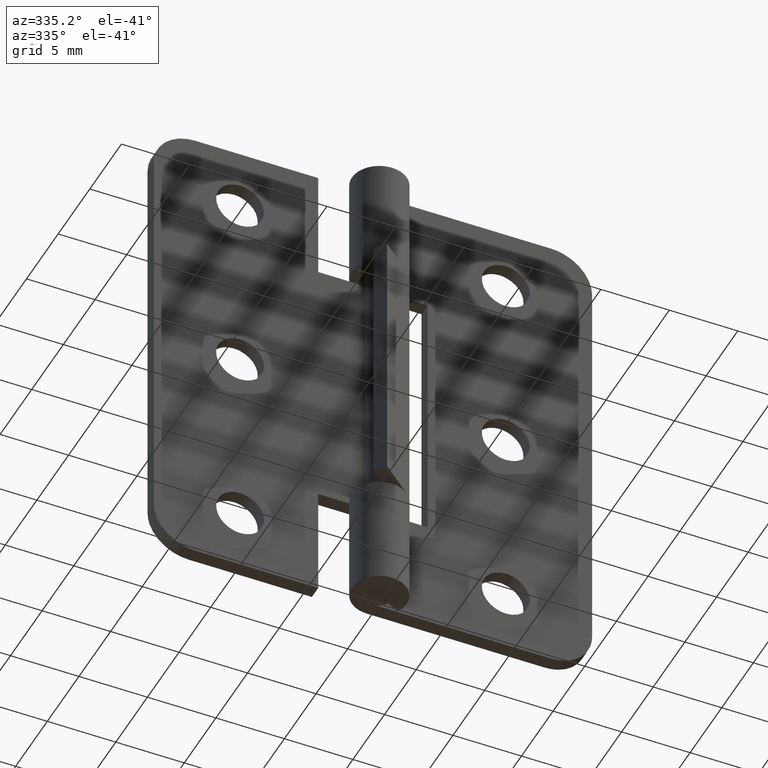
[diagram: clean part render]
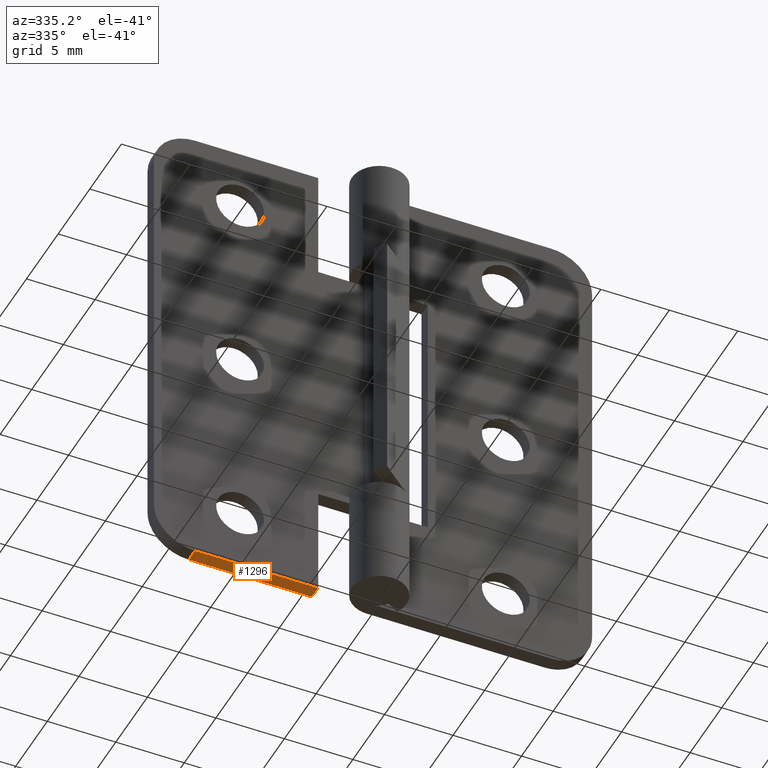
[diagram: same view with one face highlighted and labeled with its STEP entity id]
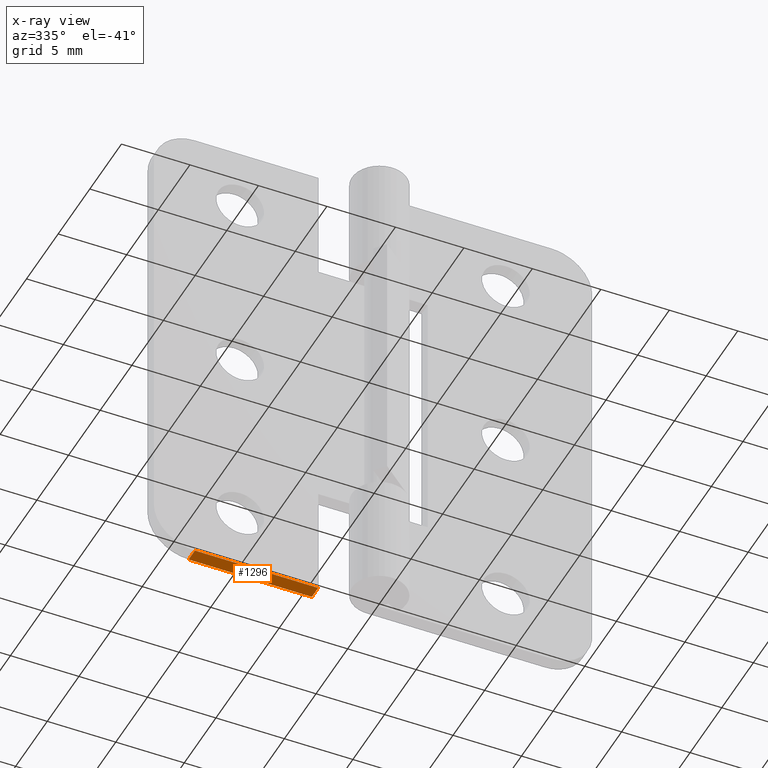
[diagram: x-ray of the same camera — body ghosted, the highlighted face saturated]
A machine part, auxiliary view. The second image highlights one B-rep face of the part: STEP entity #1296.
The next image is the same camera in x-ray: the body ghosted, the highlighted face saturated — about 0% of this face is hidden behind the body in this view.
In plain terms, the highlighted face is a freeform B-spline surface patch.
Its self-contained STEP definition (entity closure, byte-faithful):
#918=CARTESIAN_POINT('',(-13.0,1.0,0.0));
#919=VERTEX_POINT('',#918);
#940=CARTESIAN_POINT('',(-13.0,2.0,0.0));
#941=VERTEX_POINT('',#940);
#955=CARTESIAN_POINT('',(-13.0,1.0,0.0));
#956=CARTESIAN_POINT('',(-13.0,2.0,0.0));
#957=QUASI_UNIFORM_CURVE('',1,(#955,#956),.UNSPECIFIED.,.F.,.U.);
#958=EDGE_CURVE('',#919,#941,#957,.T.);
#1269=CARTESIAN_POINT('',(-13.449549982556251,0.950050001938194,0.0));
#1270=CARTESIAN_POINT('',(-3.550449776044936,0.950050001938194,0.0));
#1271=CARTESIAN_POINT('',(-13.449549982556251,2.049950024883896,0.0));
#1272=CARTESIAN_POINT('',(-3.550449776044936,2.049950024883896,0.0));
#1273=B_SPLINE_SURFACE_WITH_KNOTS('',1,1,((#1269,#1271),(#1270,#1272)),.UNSPECIFIED.,.F.,.F.,.U.,(2,2),(2,2),(0.0,9.899100206511319),(0.041708334948495,0.958291687403247),.UNSPECIFIED.);
#1274=CARTESIAN_POINT('',(-4.0,1.0,0.0));
#1275=VERTEX_POINT('',#1274);
#1276=CARTESIAN_POINT('',(-13.0,1.0,0.0));
#1277=CARTESIAN_POINT('',(-4.0,1.0,0.0));
#1278=QUASI_UNIFORM_CURVE('',1,(#1276,#1277),.UNSPECIFIED.,.F.,.U.);
#1279=EDGE_CURVE('',#919,#1275,#1278,.T.);
#1280=ORIENTED_EDGE('',*,*,#1279,.F.);
#1281=ORIENTED_EDGE('',*,*,#958,.T.);
#1282=CARTESIAN_POINT('',(-4.0,2.0,0.0));
#1283=VERTEX_POINT('',#1282);
#1284=CARTESIAN_POINT('',(-13.0,2.0,0.0));
#1285=CARTESIAN_POINT('',(-4.0,2.0,0.0));
#1286=QUASI_UNIFORM_CURVE('',1,(#1284,#1285),.UNSPECIFIED.,.F.,.U.);
#1287=EDGE_CURVE('',#941,#1283,#1286,.T.);
#1288=ORIENTED_EDGE('',*,*,#1287,.T.);
#1289=CARTESIAN_POINT('',(-4.0,1.0,0.0));
#1290=CARTESIAN_POINT('',(-4.0,2.0,0.0));
#1291=QUASI_UNIFORM_CURVE('',1,(#1289,#1290),.UNSPECIFIED.,.F.,.U.);
#1292=EDGE_CURVE('',#1275,#1283,#1291,.T.);
#1293=ORIENTED_EDGE('',*,*,#1292,.F.);
#1294=EDGE_LOOP('',(#1280,#1281,#1288,#1293));
#1295=FACE_OUTER_BOUND('',#1294,.T.);
#1296=ADVANCED_FACE('',(#1295),#1273,.F.);